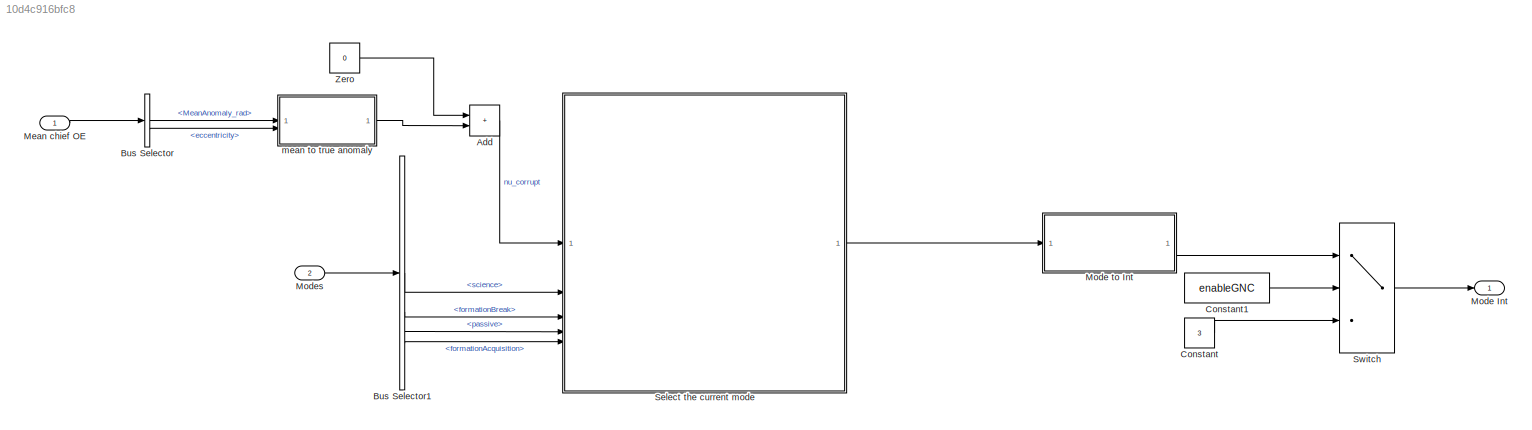
MODEL slx_10d4c916bfc8
KIND model
CONFIG AbsTol = auto
CONFIG EnableMultiTasking = off
CONFIG FixedStep = dt
CONFIG MaxStep = auto
CONFIG MinStep = auto
CONFIG RelTol = 1e-3
CONFIG SampleTimeConstraint = Unconstrained
CONFIG SolverName = ode4
CONFIG StartTime = 0.0
CONFIG StopTime = 10.0
BLOCK [Sum] Add
  IconShape = rectangular
BLOCK [BusSelector] Bus Selector
  OutputSignals = MeanAnomaly_rad,eccentricity
BLOCK [BusSelector] Bus Selector1
  OutputSignals = science,formationBreak,passive,formationAcquisition
BLOCK [Constant] Constant
  Value = 3
BLOCK [Constant] Constant1
  Value = enableGNC
BLOCK [Inport] Mean chief OE
  OutDataTypeStr = Bus: osculatingOrbitElements
BLOCK [Outport] Mode Int
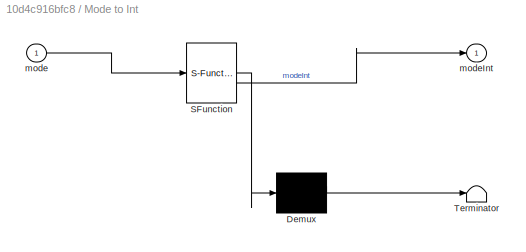
BLOCK [SubSystem] Mode to Int
  ErrorFcn = Stateflow.Translate.translate
  LibrarySourceBlock = simulink/User-Defined\nFunctions/MATLAB Function
  PermitHierarchicalResolution = ExplicitOnly
  SFBlockType = MATLAB Function
  TreatAsAtomicUnit = on
BLOCK [Demux] Mode to Int/ Demux 
  Outputs = 1
BLOCK [S-Function] Mode to Int/ SFunction 
  EnableBusSupport = on
  FunctionName = sf_sfun
  PortCounts = [1 2]
  SFcnIsStateOwnerBlock = off
  SFunctionDeploymentMode = off
  Tag = Stateflow S-Function 3
BLOCK [Terminator] Mode to Int/ Terminator 
BLOCK [Inport] Mode to Int/mode
BLOCK [Outport] Mode to Int/modeInt
BLOCK [Inport] Modes
  OutDataTypeStr = Bus: modes
  Port = 2
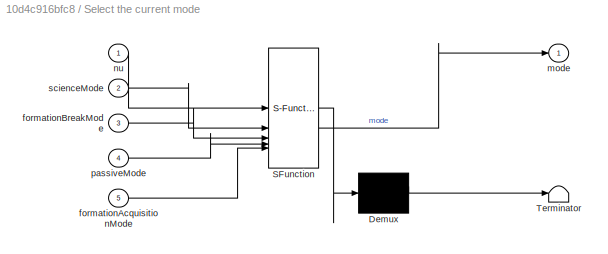
BLOCK [SubSystem] Select the current mode
  ErrorFcn = Stateflow.Translate.translate
  LibrarySourceBlock = simulink/User-Defined\nFunctions/MATLAB Function
  PermitHierarchicalResolution = ExplicitOnly
  SFBlockType = MATLAB Function
  TreatAsAtomicUnit = on
BLOCK [Demux] Select the current mode/ Demux 
  Outputs = 1
BLOCK [S-Function] Select the current mode/ SFunction 
  EnableBusSupport = on
  FunctionName = sf_sfun
  PortCounts = [5 2]
  SFcnIsStateOwnerBlock = off
  SFunctionDeploymentMode = off
  Tag = Stateflow S-Function 1
BLOCK [Terminator] Select the current mode/ Terminator 
BLOCK [Inport] Select the current mode/formationAcquisitionMode
  Port = 5
BLOCK [Inport] Select the current mode/formationBreakMode
  Port = 3
BLOCK [Outport] Select the current mode/mode
BLOCK [Inport] Select the current mode/nu
BLOCK [Inport] Select the current mode/passiveMode
  Port = 4
BLOCK [Inport] Select the current mode/scienceMode
  Port = 2
BLOCK [Switch] Switch
  Criteria = u2 > Threshold
  InputSameDT = off
  SaturateOnIntegerOverflow = off
BLOCK [Constant] Zero
  OutDataTypeStr = Inherit: Inherit via back propagation
  Value = 0
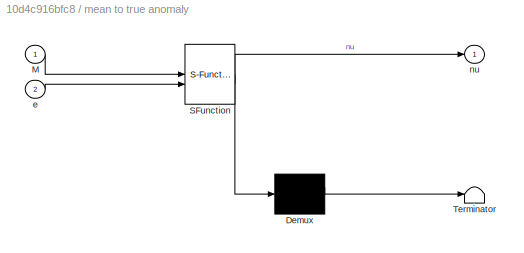
BLOCK [SubSystem] mean to true anomaly 
  ErrorFcn = Stateflow.Translate.translate
  LibrarySourceBlock = simulink/User-Defined\nFunctions/MATLAB Function
  PermitHierarchicalResolution = ExplicitOnly
  SFBlockType = MATLAB Function
  TreatAsAtomicUnit = on
BLOCK [Demux] mean to true anomaly / Demux 
  Outputs = 1
BLOCK [S-Function] mean to true anomaly / SFunction 
  EnableBusSupport = on
  FunctionName = sf_sfun
  PortCounts = [2 2]
  SFcnIsStateOwnerBlock = off
  SFunctionDeploymentMode = off
  Tag = Stateflow S-Function 2
BLOCK [Terminator] mean to true anomaly / Terminator 
BLOCK [Inport] mean to true anomaly /M
BLOCK [Inport] mean to true anomaly /e
  Port = 2
BLOCK [Outport] mean to true anomaly /nu
LINE Add:1 -> Select the current mode:1
LINE Bus Selector1:1 -> Select the current mode:2
LINE Bus Selector1:2 -> Select the current mode:3
LINE Bus Selector1:3 -> Select the current mode:4
LINE Bus Selector1:4 -> Select the current mode:5
LINE Bus Selector:1 -> mean to true anomaly :1
LINE Bus Selector:2 -> mean to true anomaly :2
LINE Constant1:1 -> Switch:2
LINE Constant:1 -> Switch:3
LINE Mean chief OE:1 -> Bus Selector:1
LINE Mode to Int:1 -> Switch:1
LINE Modes:1 -> Bus Selector1:1
LINE Select the current mode:1 -> Mode to Int:1
LINE Switch:1 -> Mode Int:1
LINE Zero:1 -> Add:1
LINE mean to true anomaly :1 -> Add:2
CHART Select the current mode states=1 transitions=1
  STATE_LABEL 'eML_blk_kernel()'
  STATE_LABEL 'SCRIPT:\nfunction mode = selectMode(nu, scienceMode, formationBreakMode, passiveMode, formationAcquisitionMode)\n\nmode = selectMode(nu, scienceMode, formationBreakMode, passiveMode, formationAcquisitionMode);\n\nend\n'
CHART mean to true anomaly  states=1 transitions=1
  STATE_LABEL 'eML_blk_kernel()'
  STATE_LABEL 'SCRIPT:\nfunction nu = M2nu(M, e)\n\nnu = M2nu(M, e);\n\nend\n'
CHART Mode to Int states=1 transitions=1
  STATE_LABEL 'eML_blk_kernel()'
  STATE_LABEL 'SCRIPT:\nfunction modeInt = mode2int(mode)\nmodeInt = mode2int(mode);\nend\n'
CHART  states=0 transitions=0
CHART  states=0 transitions=0
CHART  states=0 transitions=0
